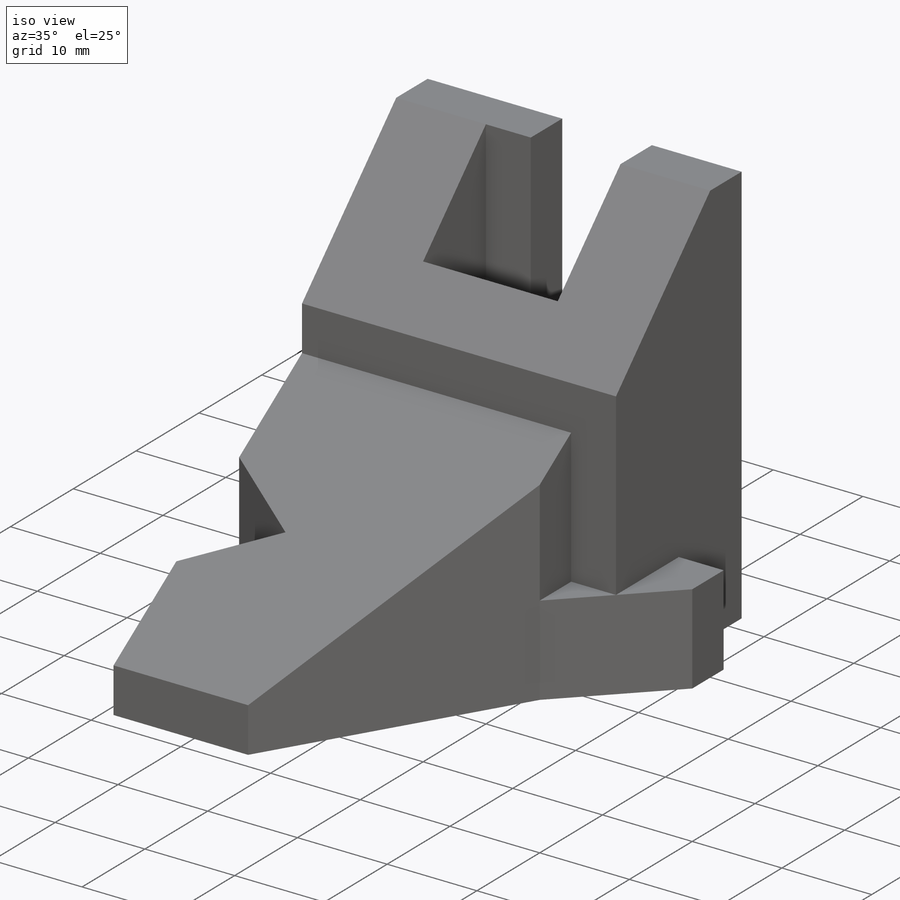
[diagram: iso view]
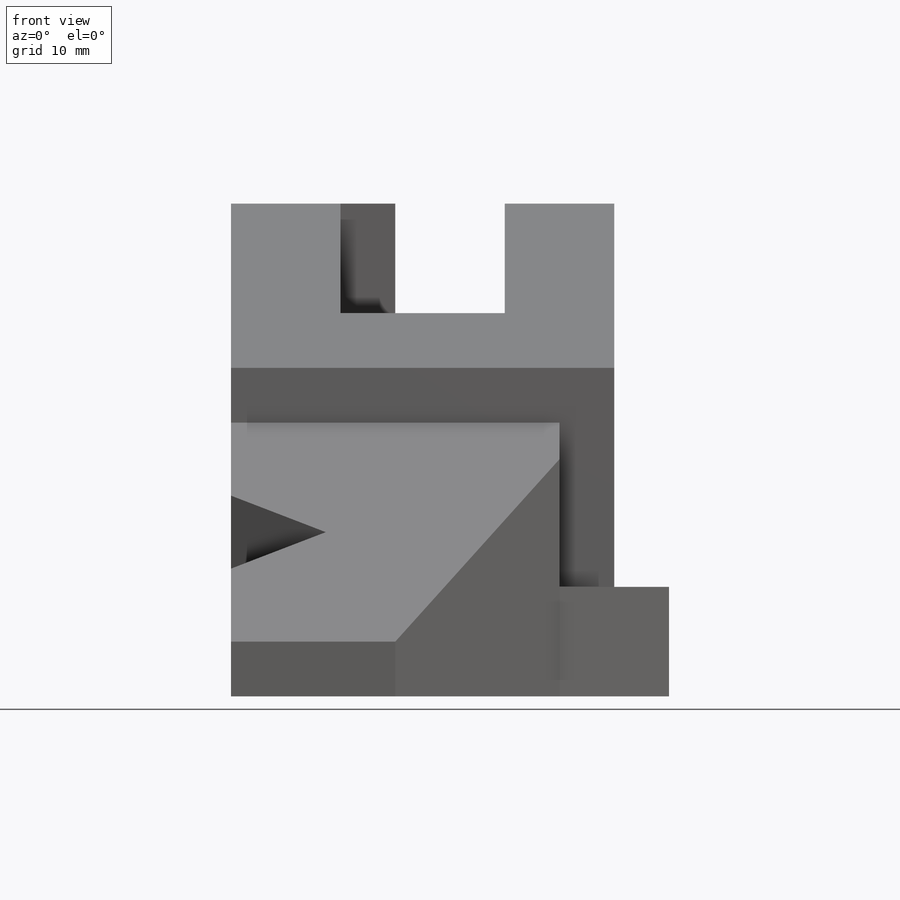
[diagram: front view]
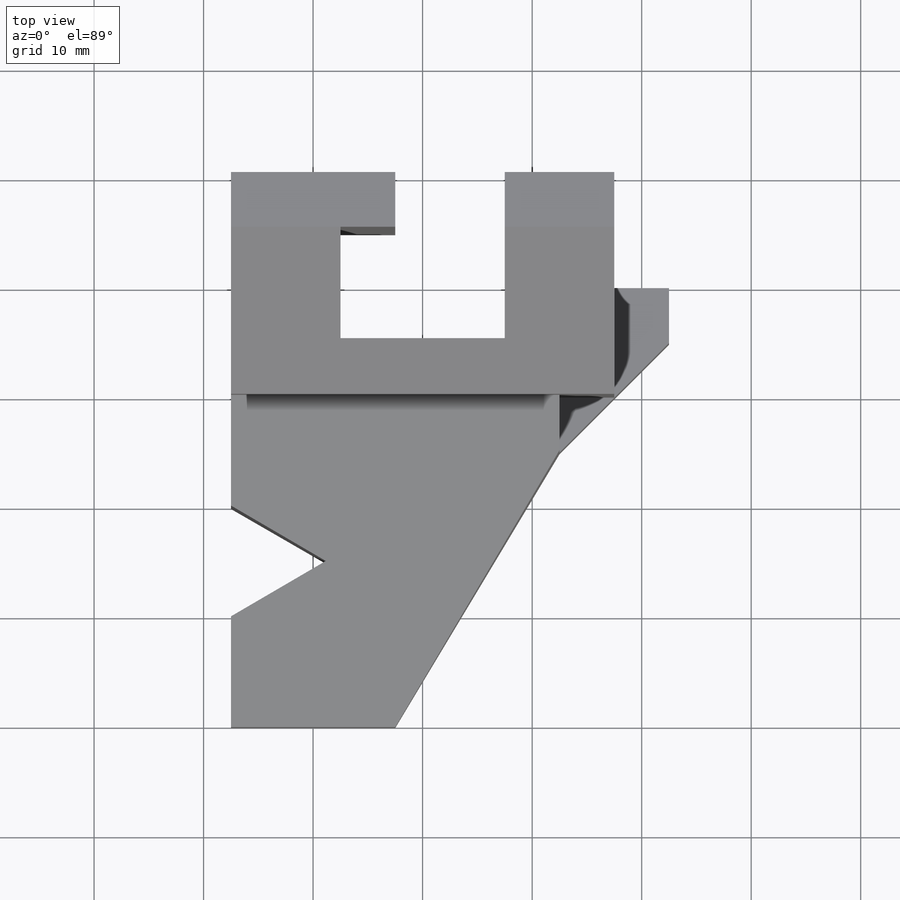
[diagram: top view]
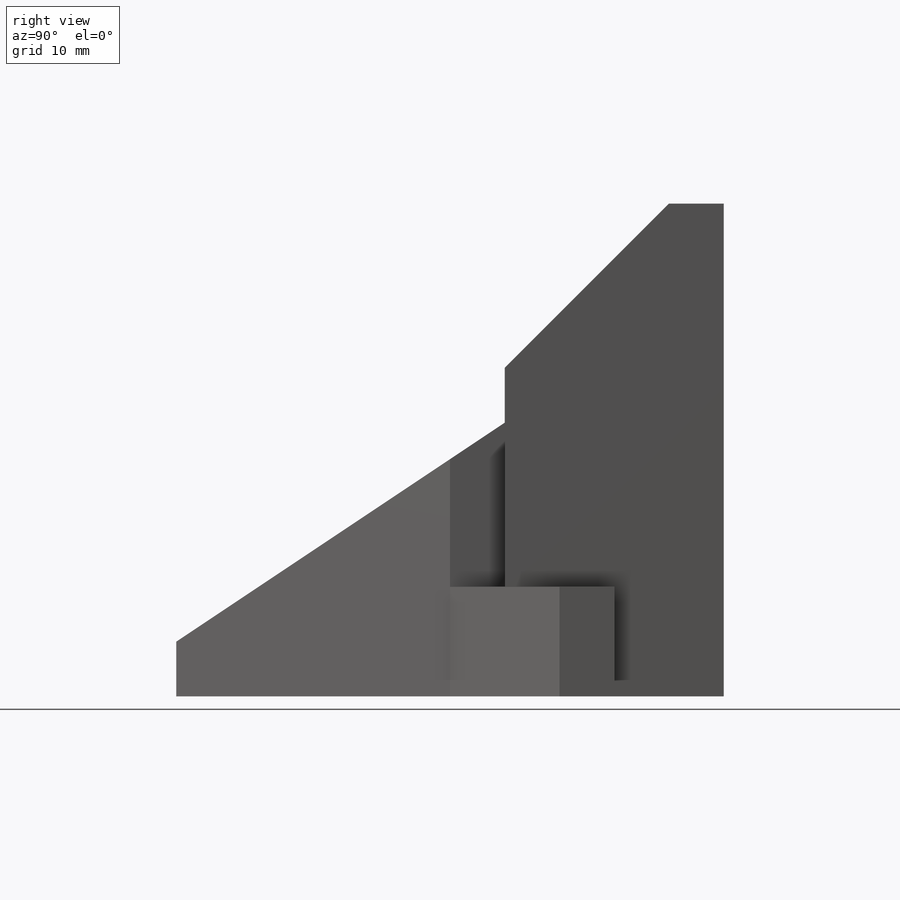
[diagram: right view]
SOLIDWORKS PART (.sldprt)
format: sldprt  version: not decoded by parser v0  size: 295,424 bytes
history: native  units: mm
features: sketch x13, cut_extrude x7, extrude x6, material x1, plane x1 (+13 scaffold rows collapsed)
feature tree (41):
  scaffold x13  (default folders/planes/origin — collapsed)
  material  "Material <not specified>"
  sketch  "Sketch1"  dims[D1=35.0mm D2=45.0mm]
  extrude  "Boss-Extrude2"  Depth=20mm
  sketch  "Sketch3"  dims[D1=15.0mm D2=10.0mm D3=10.0mm D4=5.0mm D5=10.0mm]
  cut_extrude  "Cut-Extrude1"  [1 undecoded]
  sketch  "Sketch4"  dims[D1=5.0mm D2=30.0mm]
  cut_extrude  "Cut-Extrude2"  [1 undecoded]
  sketch  "Sketch5"  dims[D1=10.0mm D2=10.0mm]
  extrude  "Boss-Extrude3"  Depth=5mm
  sketch  "Sketch6"  dims[D1=5.0mm]
  cut_extrude  "Cut-Extrude3"  [1 undecoded]
  sketch  "Sketch7"  dims[D1=5.0mm D2=5.0mm]
  extrude  "Boss-Extrude4"  Depth=30mm
  sketch  "Sketch8"
  extrude  "Boss-Extrude5"  Depth=5mm
  sketch  "Sketch9"
  cut_extrude  "Cut-Extrude4"  [1 undecoded]
  sketch  "Sketch11"
  extrude  "Boss-Extrude6"  Depth=5mm
  sketch  "Sketch12"
  extrude  "Boss-Extrude7"  Depth=5mm
  sketch  "Sketch13"  dims[D1=15.0mm]
  cut_extrude  "Cut-Extrude7"  [1 undecoded]
  sketch  "Sketch14"  dims[D1=10.0mm D2=10.0mm D3=15.0mm D4=10.0mm D5=10.0mm]
  cut_extrude  "Cut-Extrude8"  [1 undecoded]
  plane  "Plane1"  Offset=17.5mm
  sketch  "Sketch15"  dims[D1=5.0mm]
  cut_extrude  "Cut-Extrude11"  [1 undecoded]
decode coverage: 15 of 26 modeling features carry decoded parameters
note: 7 parameter values undecoded
summary: no parameter record found for 7 features
note: suppression state not decoded; provenance and decode notes live in map.json
